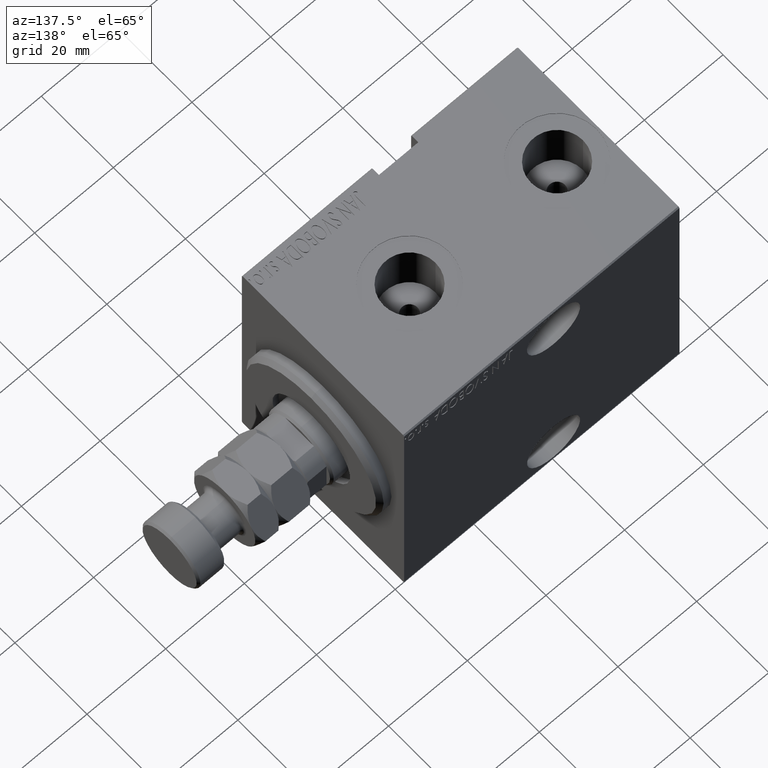
[diagram: clean part render]
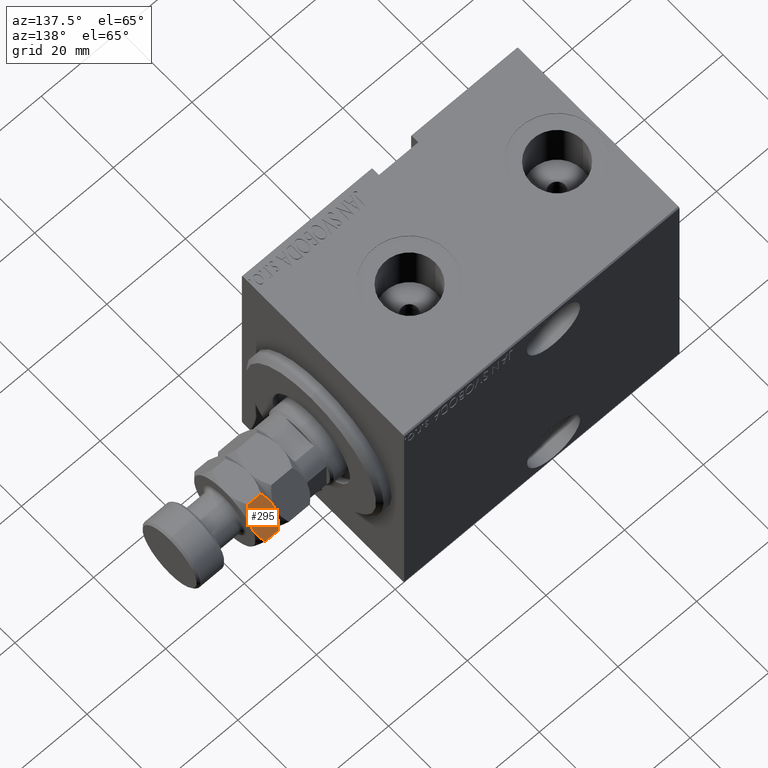
[diagram: same view with one face highlighted and labeled with its STEP entity id]
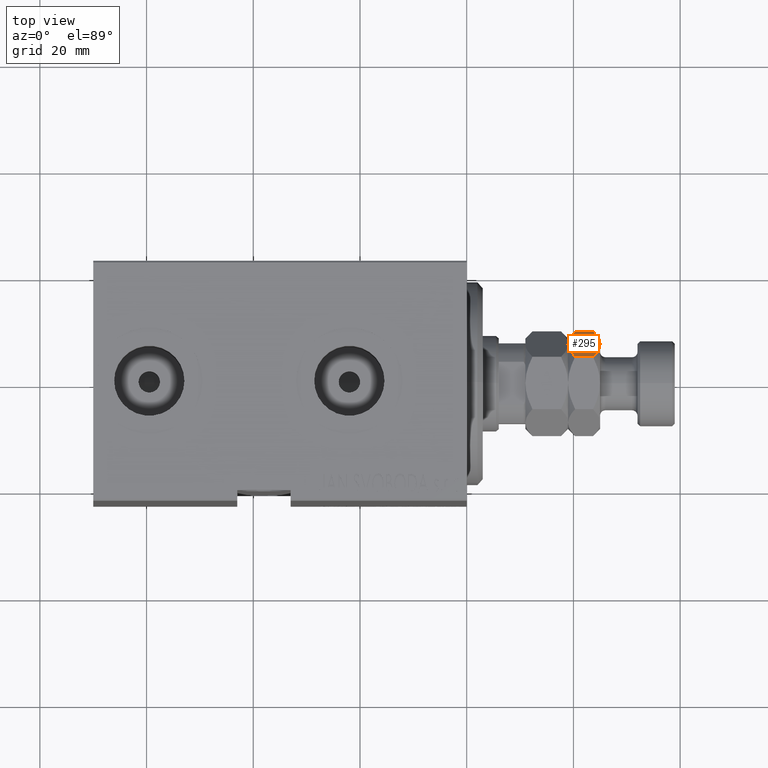
[diagram: same view with one face highlighted and labeled with its STEP entity id]
A machine part, auxiliary view. The second image highlights one B-rep face of the part: STEP entity #295.
A second angle (top view) of the same face is appended — the face is thin or edge-on in the first view.
In plain terms, the highlighted planar face has unit normal (-0, -0.866, -0.5).
Its self-contained STEP definition (entity closure, byte-faithful):
#292 = CARTESIAN_POINT ( 'NONE',  ( -5.000029324638983752, 6.928186299687294714, 8.033736749598364923 ) ) ;
#295 = ADVANCED_FACE ( 'NONE', ( #13784 ), #3584, .F. ) ;
#517 = DIRECTION ( 'NONE',  ( -0.000000000000000000, -0.000000000000000000, -1.000000000000000000 ) ) ;
#2246 = EDGE_CURVE ( 'NONE', #2971, #7090, #27275, .T. ) ;
#2559 = CARTESIAN_POINT ( 'NONE',  ( -2.784079206026080833, 8.207565697179237674, 8.130520287383214750 ) ) ;
#2971 = VERTEX_POINT ( 'NONE', #32222 ) ;
#3249 = CARTESIAN_POINT ( 'NONE',  ( -4.518323438531710351E-16, 9.814954576223636096, 9.314954576223632543 ) ) ;
#3400 = CARTESIAN_POINT ( 'NONE',  ( -8.499999999999994671, 4.907477288111815383, 12.68504542377636923 ) ) ;
#3584 = PLANE ( 'NONE',  #14426 ) ;
#4050 = CARTESIAN_POINT ( 'NONE',  ( -2.407069963478079000, 8.425232084851300485, 13.74637591067534181 ) ) ;
#4910 = B_SPLINE_CURVE_WITH_KNOTS ( 'NONE', 3,
 ( #27877, #31592, #17693, #14672, #42213, #292, #45678, #21387 ),
 .UNSPECIFIED., .F., .F.,
 ( 4, 2, 2, 4 ),
 ( 2.544313836655798784E-07, 0.002543776790731952769, 0.003815537970406096546, 0.005087299150080239890 ),
 .UNSPECIFIED. ) ;
#5277 = ORIENTED_EDGE ( 'NONE', *, *, #20384, .F. ) ;
#5524 = CARTESIAN_POINT ( 'NONE',  ( -4.989245346831673089, 6.934412432177277097, 14.00000000000000000 ) ) ;
#6376 = CARTESIAN_POINT ( 'NONE',  ( -2.175848833159079736E-16, 9.814954576223636096, 14.00000000000000000 ) ) ;
#7090 = VERTEX_POINT ( 'NONE', #31733 ) ;
#7391 = EDGE_CURVE ( 'NONE', #27573, #29088, #4910, .T. ) ;
#9704 = VECTOR ( 'NONE', #25738, 1000.000000000000000 ) ;
#10224 = CARTESIAN_POINT ( 'NONE',  ( -3.510754653168321138, 7.788019432158173494, 8.000000000000000000 ) ) ;
#13784 = FACE_OUTER_BOUND ( 'NONE', #26619, .T. ) ;
#14426 = AXIS2_PLACEMENT_3D ( 'NONE', #6376, #35318, #42021 ) ;
#14672 = CARTESIAN_POINT ( 'NONE',  ( -6.092930036521915227, 6.297199779484147442, 8.253624089324654634 ) ) ;
#16588 = EDGE_CURVE ( 'NONE', #29088, #37907, #33389, .T. ) ;
#17170 = CARTESIAN_POINT ( 'NONE',  ( -4.249999999999994671, 7.361215932167727516, 8.000000000000000000 ) ) ;
#17625 = EDGE_CURVE ( 'NONE', #2971, #37907, #18135, .T. ) ;
#17693 = CARTESIAN_POINT ( 'NONE',  ( -7.151994807070138016, 5.685748449118881886, 8.603209212420120267 ) ) ;
#18135 = LINE ( 'NONE', #32268, #39178 ) ;
#18190 = CARTESIAN_POINT ( 'NONE',  ( -2.766281260884828175, 8.217841345597564739, 13.83917829205816830 ) ) ;
#18457 = CARTESIAN_POINT ( 'NONE',  ( -8.499999999999994671, 4.907477288111815383, 9.314954576223630767 ) ) ;
#19652 = CARTESIAN_POINT ( 'NONE',  ( -4.250000000000000000, 7.361215932167723963, 14.00000000000000000 ) ) ;
#20384 = EDGE_CURVE ( 'NONE', #23650, #27573, #39419, .T. ) ;
#21387 = CARTESIAN_POINT ( 'NONE',  ( -4.249999999999994671, 7.361215932167727516, 8.000000000000000000 ) ) ;
#21664 = CARTESIAN_POINT ( 'NONE',  ( -4.351697665308417514E-16, 9.814954576223636096, 12.68504542377636746 ) ) ;
#23650 = VERTEX_POINT ( 'NONE', #3400 ) ;
#24558 = CARTESIAN_POINT ( 'NONE',  ( -0.6656893889372517137, 9.430618628324037189, 8.930618628323932384 ) ) ;
#25352 = CARTESIAN_POINT ( 'NONE',  ( -4.250000000000000000, 7.361215932167723963, 14.00000000000000000 ) ) ;
#25380 = ORIENTED_EDGE ( 'NONE', *, *, #39766, .F. ) ;
#25738 = DIRECTION ( 'NONE',  ( -0.000000000000000000, -0.000000000000000000, -1.000000000000000000 ) ) ;
#26619 = EDGE_LOOP ( 'NONE', ( #39422, #5277, #25380, #32502, #44981, #41822 ) ) ;
#27275 = B_SPLINE_CURVE_WITH_KNOTS ( 'NONE', 3,
 ( #21664, #43829, #39260, #4050, #18190, #28860, #42945, #25352 ),
 .UNSPECIFIED., .F., .F.,
 ( 4, 2, 2, 4 ),
 ( 2.544313836661324615E-07, 0.002543776790731952335, 0.003815537970406096113, 0.005087299150080239023 ),
 .UNSPECIFIED. ) ;
#27573 = VERTEX_POINT ( 'NONE', #18457 ) ;
#27877 = CARTESIAN_POINT ( 'NONE',  ( -8.499999999999994671, 4.907477288111815383, 9.314954576223630767 ) ) ;
#28860 = CARTESIAN_POINT ( 'NONE',  ( -3.499970675361010031, 7.794245564648159430, 13.96626325040163330 ) ) ;
#29088 = VERTEX_POINT ( 'NONE', #32510 ) ;
#29861 = CARTESIAN_POINT ( 'NONE',  ( -7.149107353189442016, 5.687415521394174611, 13.39906158726387986 ) ) ;
#31521 = CARTESIAN_POINT ( 'NONE',  ( -1.350892646810551767, 9.035016342941274203, 8.600938412736123695 ) ) ;
#31592 = CARTESIAN_POINT ( 'NONE',  ( -7.833539178395713343, 5.292258622869389306, 8.930173241466055956 ) ) ;
#31733 = CARTESIAN_POINT ( 'NONE',  ( -4.250000000000000000, 7.361215932167723963, 14.00000000000000000 ) ) ;
#32222 = CARTESIAN_POINT ( 'NONE',  ( -4.351697665308417514E-16, 9.814954576223636096, 12.68504542377636746 ) ) ;
#32268 = CARTESIAN_POINT ( 'NONE',  ( -2.175848833159079736E-16, 9.814954576223636096, 14.00000000000000000 ) ) ;
#32502 = ORIENTED_EDGE ( 'NONE', *, *, #2246, .F. ) ;
#32510 = CARTESIAN_POINT ( 'NONE',  ( -4.249999999999994671, 7.361215932167727516, 8.000000000000000000 ) ) ;
#33389 = B_SPLINE_CURVE_WITH_KNOTS ( 'NONE', 3,
 ( #17170, #10224, #2559, #31521, #24558, #3249 ),
 .UNSPECIFIED., .F., .F.,
 ( 4, 2, 4 ),
 ( 0.005087299150080239890, 0.007613005268011858312, 0.01013871138594347673 ),
 .UNSPECIFIED. ) ;
#33783 = CARTESIAN_POINT ( 'NONE',  ( -5.715920793973914726, 6.514866167156213805, 13.86947971261678703 ) ) ;
#34013 = CARTESIAN_POINT ( 'NONE',  ( -7.834310611062746510, 5.291813236011414290, 13.06938137167606939 ) ) ;
#34901 = B_SPLINE_CURVE_WITH_KNOTS ( 'NONE', 3,
 ( #19652, #5524, #33783, #29861, #34013, #40480 ),
 .UNSPECIFIED., .F., .F.,
 ( 4, 2, 4 ),
 ( 0.005087299150080239023, 0.007613005268011858312, 0.01013871138594347673 ),
 .UNSPECIFIED. ) ;
#35318 = DIRECTION ( 'NONE',  ( 0.5000000000000004441, -0.8660254037844384856, 0.000000000000000000 ) ) ;
#36179 = CARTESIAN_POINT ( 'NONE',  ( -8.499999999999994671, 4.907477288111815383, 14.00000000000000000 ) ) ;
#37907 = VERTEX_POINT ( 'NONE', #43313 ) ;
#39178 = VECTOR ( 'NONE', #517, 1000.000000000000000 ) ;
#39260 = CARTESIAN_POINT ( 'NONE',  ( -1.348005192929857543, 9.036683415216568704, 13.39679078757987085 ) ) ;
#39419 = LINE ( 'NONE', #36179, #9704 ) ;
#39422 = ORIENTED_EDGE ( 'NONE', *, *, #7391, .F. ) ;
#39766 = EDGE_CURVE ( 'NONE', #7090, #23650, #34901, .T. ) ;
#40480 = CARTESIAN_POINT ( 'NONE',  ( -8.499999999999994671, 4.907477288111815383, 12.68504542377636923 ) ) ;
#41822 = ORIENTED_EDGE ( 'NONE', *, *, #16588, .F. ) ;
#42021 = DIRECTION ( 'NONE',  ( 0.8660254037844383745, 0.5000000000000003331, 0.000000000000000000 ) ) ;
#42213 = CARTESIAN_POINT ( 'NONE',  ( -5.733718739115167828, 6.504590518737891180, 8.160821707941829928 ) ) ;
#42945 = CARTESIAN_POINT ( 'NONE',  ( -3.877770021349440821, 7.576123010542071157, 13.99999999999999289 ) ) ;
#43313 = CARTESIAN_POINT ( 'NONE',  ( -4.518323438531710351E-16, 9.814954576223636096, 9.314954576223632543 ) ) ;
#43829 = CARTESIAN_POINT ( 'NONE',  ( -0.6664608216042852140, 9.430173241466061285, 13.06982675853394049 ) ) ;
#44981 = ORIENTED_EDGE ( 'NONE', *, *, #17625, .T. ) ;
#45678 = CARTESIAN_POINT ( 'NONE',  ( -4.622229978650551629, 7.146308853793378546, 7.999999999999996447 ) ) ;